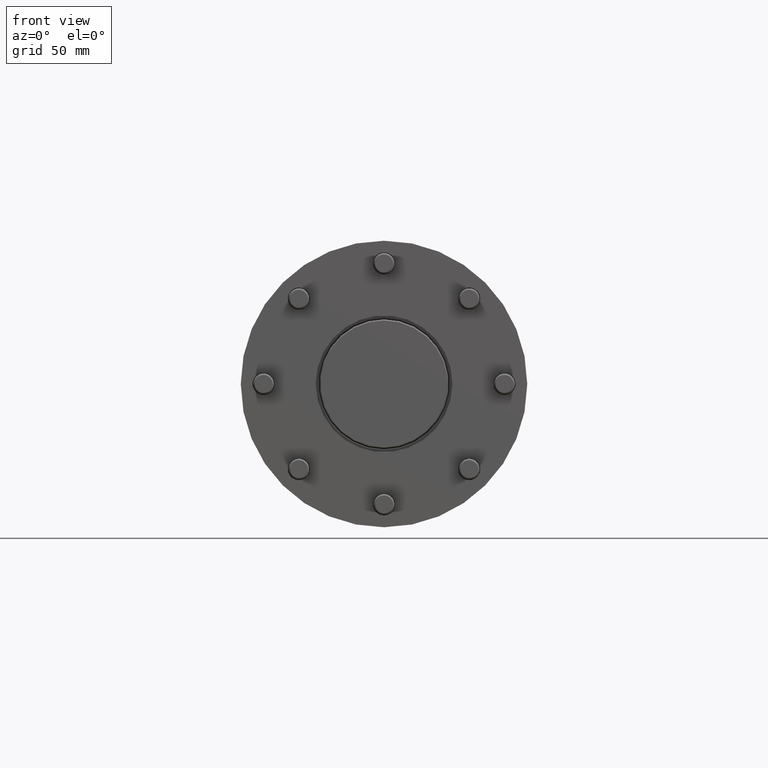
[diagram: clean part render]
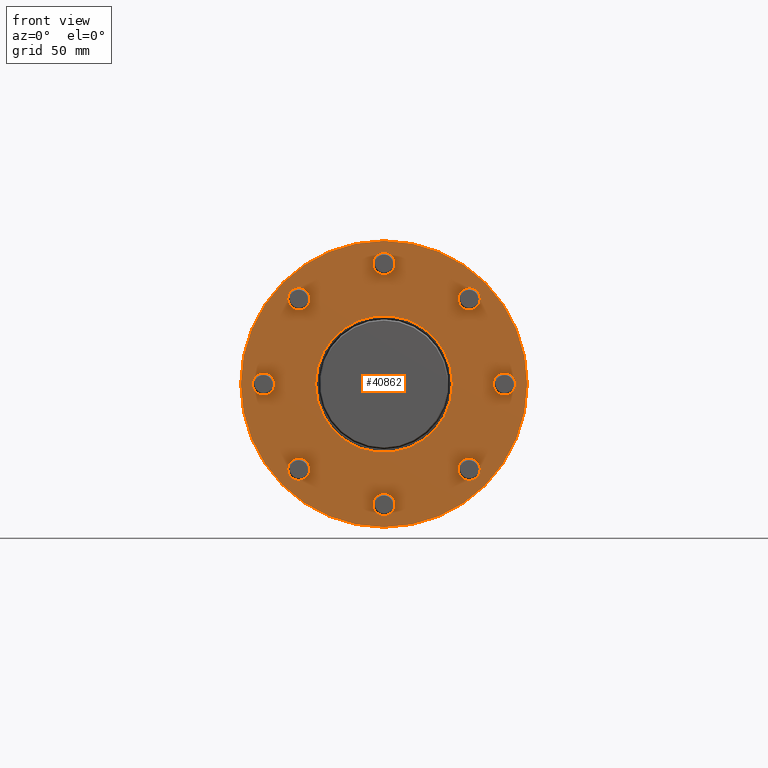
[diagram: same view with one face highlighted and labeled with its STEP entity id]
A machine part, front view. The second image highlights one B-rep face of the part: STEP entity #40862.
In plain terms, the highlighted planar face has unit normal (0, -1, 0).
Its self-contained STEP definition (entity closure, byte-faithful):
#86 = DIRECTION ( 'NONE',  ( 0.0000000000000000000, -1.000000000000000000, 0.0000000000000000000 ) ) ;
#146 = DIRECTION ( 'NONE',  ( 1.000000000000000000, 0.0000000000000000000, 0.0000000000000000000 ) ) ;
#170 = CARTESIAN_POINT ( 'NONE',  ( 0.0000000000000000000, -1.734723475976804900E-015, 92.50000000000000000 ) ) ;
#224 = CARTESIAN_POINT ( 'NONE',  ( 92.50000000000000000, -1.734723475976804900E-015, -3.229620238429899800E-013 ) ) ;
#296 = CARTESIAN_POINT ( 'NONE',  ( 65.40737725975580500, -1.734723475976804900E-015, 65.40737725975560600 ) ) ;
#299 = DIRECTION ( 'NONE',  ( 0.0000000000000000000, -1.000000000000000000, 0.0000000000000000000 ) ) ;
#300 = DIRECTION ( 'NONE',  ( 1.000000000000000000, 0.0000000000000000000, 0.0000000000000000000 ) ) ;
#517 = DIRECTION ( 'NONE',  ( 0.0000000000000000000, -1.000000000000000000, 0.0000000000000000000 ) ) ;
#518 = DIRECTION ( 'NONE',  ( 1.000000000000000000, 0.0000000000000000000, 0.0000000000000000000 ) ) ;
#519 = CARTESIAN_POINT ( 'NONE',  ( 0.0000000000000000000, -1.734723475976804900E-015, 0.0000000000000000000 ) ) ;
#522 = DIRECTION ( 'NONE',  ( 0.0000000000000000000, -1.000000000000000000, 0.0000000000000000000 ) ) ;
#523 = DIRECTION ( 'NONE',  ( 1.000000000000000000, 0.0000000000000000000, 0.0000000000000000000 ) ) ;
#12394 = DIRECTION ( 'NONE',  ( 1.000000000000000000, 0.0000000000000000000, 0.0000000000000000000 ) ) ;
#12395 = DIRECTION ( 'NONE',  ( 0.0000000000000000000, -1.000000000000000000, 0.0000000000000000000 ) ) ;
#12397 = CARTESIAN_POINT ( 'NONE',  ( 65.40737725975530700, -1.734723475976804900E-015, -65.40737725975601800 ) ) ;
#12862 = CARTESIAN_POINT ( 'NONE',  ( 92.50000000000000000, -1.734723475976804900E-015, -3.229620238429899800E-013 ) ) ;
#12863 = DIRECTION ( 'NONE',  ( 0.0000000000000000000, -1.000000000000000000, 0.0000000000000000000 ) ) ;
#12865 = DIRECTION ( 'NONE',  ( 1.000000000000000000, 0.0000000000000000000, 0.0000000000000000000 ) ) ;
#12867 = CARTESIAN_POINT ( 'NONE',  ( 65.40737725975580500, -1.734723475976804900E-015, 65.40737725975560600 ) ) ;
#12870 = DIRECTION ( 'NONE',  ( 1.000000000000000000, 0.0000000000000000000, 0.0000000000000000000 ) ) ;
#12871 = DIRECTION ( 'NONE',  ( 0.0000000000000000000, -1.000000000000000000, 0.0000000000000000000 ) ) ;
#12875 = CARTESIAN_POINT ( 'NONE',  ( 0.0000000000000000000, -1.734723475976804900E-015, 92.50000000000000000 ) ) ;
#12877 = CARTESIAN_POINT ( 'NONE',  ( 0.0000000000000000000, -1.734723475976804900E-015, 0.0000000000000000000 ) ) ;
#12878 = DIRECTION ( 'NONE',  ( 0.0000000000000000000, -1.000000000000000000, 0.0000000000000000000 ) ) ;
#12880 = DIRECTION ( 'NONE',  ( 1.000000000000000000, 0.0000000000000000000, 0.0000000000000000000 ) ) ;
#12882 = CARTESIAN_POINT ( 'NONE',  ( 0.0000000000000000000, -1.734723475976804900E-015, 0.0000000000000000000 ) ) ;
#12885 = DIRECTION ( 'NONE',  ( 0.0000000000000000000, -1.000000000000000000, 0.0000000000000000000 ) ) ;
#12887 = DIRECTION ( 'NONE',  ( 1.000000000000000000, 0.0000000000000000000, 0.0000000000000000000 ) ) ;
#12893 = DIRECTION ( 'NONE',  ( 0.0000000000000000000, -1.000000000000000000, 0.0000000000000000000 ) ) ;
#12894 = DIRECTION ( 'NONE',  ( 1.000000000000000000, 0.0000000000000000000, 0.0000000000000000000 ) ) ;
#12900 = CARTESIAN_POINT ( 'NONE',  ( -65.40737725975489500, -1.734723475976804900E-015, 65.40737725975651500 ) ) ;
#12909 = CARTESIAN_POINT ( 'NONE',  ( -65.40737725975630200, -1.734723475976804900E-015, -65.40737725975510800 ) ) ;
#12913 = CARTESIAN_POINT ( 'NONE',  ( -92.50000000000000000, -1.734723475976804900E-015, 9.688860715289700900E-013 ) ) ;
#12914 = DIRECTION ( 'NONE',  ( 1.000000000000000000, 0.0000000000000000000, 0.0000000000000000000 ) ) ;
#12915 = DIRECTION ( 'NONE',  ( 0.0000000000000000000, -1.000000000000000000, 0.0000000000000000000 ) ) ;
#12916 = CARTESIAN_POINT ( 'NONE',  ( -6.459240476859800600E-013, -1.734723475976804900E-015, -92.50000000000000000 ) ) ;
#12917 = DIRECTION ( 'NONE',  ( 1.000000000000000000, 0.0000000000000000000, 0.0000000000000000000 ) ) ;
#12918 = DIRECTION ( 'NONE',  ( 0.0000000000000000000, -1.000000000000000000, 0.0000000000000000000 ) ) ;
#12920 = DIRECTION ( 'NONE',  ( 1.000000000000000000, 0.0000000000000000000, 0.0000000000000000000 ) ) ;
#12921 = DIRECTION ( 'NONE',  ( 0.0000000000000000000, -1.000000000000000000, 0.0000000000000000000 ) ) ;
#12922 = DIRECTION ( 'NONE',  ( 1.000000000000000000, 0.0000000000000000000, 0.0000000000000000000 ) ) ;
#12923 = DIRECTION ( 'NONE',  ( 0.0000000000000000000, -1.000000000000000000, 0.0000000000000000000 ) ) ;
#15802 = ORIENTED_EDGE ( 'NONE', *, *, #18904, .F. ) ;
#15803 = ORIENTED_EDGE ( 'NONE', *, *, #18897, .F. ) ;
#15804 = ORIENTED_EDGE ( 'NONE', *, *, #19399, .F. ) ;
#15805 = ORIENTED_EDGE ( 'NONE', *, *, #18900, .F. ) ;
#15806 = ORIENTED_EDGE ( 'NONE', *, *, #18892, .F. ) ;
#15807 = ORIENTED_EDGE ( 'NONE', *, *, #19401, .F. ) ;
#15808 = ORIENTED_EDGE ( 'NONE', *, *, #19546, .F. ) ;
#15809 = ORIENTED_EDGE ( 'NONE', *, *, #18392, .F. ) ;
#15811 = ORIENTED_EDGE ( 'NONE', *, *, #18308, .F. ) ;
#15812 = ORIENTED_EDGE ( 'NONE', *, *, #18278, .F. ) ;
#15813 = ORIENTED_EDGE ( 'NONE', *, *, #18396, .T. ) ;
#15814 = ORIENTED_EDGE ( 'NONE', *, *, #19391, .T. ) ;
#15815 = ORIENTED_EDGE ( 'NONE', *, *, #19388, .F. ) ;
#15816 = ORIENTED_EDGE ( 'NONE', *, *, #18940, .F. ) ;
#15842 = ORIENTED_EDGE ( 'NONE', *, *, #19385, .F. ) ;
#15845 = ORIENTED_EDGE ( 'NONE', *, *, #19379, .F. ) ;
#15846 = ORIENTED_EDGE ( 'NONE', *, *, #19382, .F. ) ;
#15848 = ORIENTED_EDGE ( 'NONE', *, *, #19714, .F. ) ;
#15850 = ORIENTED_EDGE ( 'NONE', *, *, #19400, .F. ) ;
#15852 = ORIENTED_EDGE ( 'NONE', *, *, #19398, .F. ) ;
#16991 = CIRCLE ( 'NONE', #61857, 8.500000000000007100 ) ;
#17000 = CIRCLE ( 'NONE', #61858, 8.499999999999992900 ) ;
#17010 = CIRCLE ( 'NONE', #61856, 8.500000000000000000 ) ;
#17016 = CIRCLE ( 'NONE', #61859, 52.50000000000000000 ) ;
#17026 = CIRCLE ( 'NONE', #61860, 110.0000000000000000 ) ;
#17046 = CIRCLE ( 'NONE', #61868, 8.500000000000000000 ) ;
#17047 = CIRCLE ( 'NONE', #61869, 8.500000000000000000 ) ;
#17049 = CIRCLE ( 'NONE', #61870, 8.500000000000007100 ) ;
#17053 = CIRCLE ( 'NONE', #61871, 8.500000000000000000 ) ;
#17339 = CIRCLE ( 'NONE', #61890, 8.499999999999992900 ) ;
#17602 = CIRCLE ( 'NONE', #61921, 8.499999999999992900 ) ;
#18278 = EDGE_CURVE ( 'NONE', #51222, #51102, #69260, .T. ) ;
#18308 = EDGE_CURVE ( 'NONE', #51017, #50901, #69292, .T. ) ;
#18392 = EDGE_CURVE ( 'NONE', #51209, #51074, #69390, .T. ) ;
#18396 = EDGE_CURVE ( 'NONE', #51358, #50955, #69395, .T. ) ;
#18892 = EDGE_CURVE ( 'NONE', #51167, #50909, #70229, .T. ) ;
#18897 = EDGE_CURVE ( 'NONE', #50859, #51088, #70244, .T. ) ;
#18900 = EDGE_CURVE ( 'NONE', #50894, #50704, #70253, .T. ) ;
#18904 = EDGE_CURVE ( 'NONE', #50046, #51057, #70265, .T. ) ;
#18940 = EDGE_CURVE ( 'NONE', #51206, #50970, #70374, .T. ) ;
#19379 = EDGE_CURVE ( 'NONE', #51074, #51209, #16991, .T. ) ;
#19382 = EDGE_CURVE ( 'NONE', #50901, #51017, #17000, .T. ) ;
#19385 = EDGE_CURVE ( 'NONE', #51102, #51222, #17010, .T. ) ;
#19388 = EDGE_CURVE ( 'NONE', #50970, #51206, #17016, .T. ) ;
#19391 = EDGE_CURVE ( 'NONE', #50955, #51358, #17026, .T. ) ;
#19398 = EDGE_CURVE ( 'NONE', #51057, #50046, #17046, .T. ) ;
#19399 = EDGE_CURVE ( 'NONE', #51088, #50859, #17047, .T. ) ;
#19400 = EDGE_CURVE ( 'NONE', #50704, #50894, #17049, .T. ) ;
#19401 = EDGE_CURVE ( 'NONE', #50909, #51167, #17053, .T. ) ;
#19546 = EDGE_CURVE ( 'NONE', #50706, #50988, #17339, .T. ) ;
#19714 = EDGE_CURVE ( 'NONE', #50988, #50706, #17602, .T. ) ;
#29065 = AXIS2_PLACEMENT_3D ( 'NONE', #296, #299, #300 ) ;
#29100 = AXIS2_PLACEMENT_3D ( 'NONE', #170, #86, #146 ) ;
#34123 = CARTESIAN_POINT ( 'NONE',  ( 65.40737725975530700, -1.734723475976804900E-015, -65.40737725975601800 ) ) ;
#34158 = DIRECTION ( 'NONE',  ( 0.0000000000000000000, -1.000000000000000000, 0.0000000000000000000 ) ) ;
#34159 = DIRECTION ( 'NONE',  ( 1.000000000000000000, 0.0000000000000000000, 0.0000000000000000000 ) ) ;
#34439 = CARTESIAN_POINT ( 'NONE',  ( 0.0000000000000000000, -1.734723475976804900E-015, 0.0000000000000000000 ) ) ;
#34463 = DIRECTION ( 'NONE',  ( 0.0000000000000000000, -1.000000000000000000, 0.0000000000000000000 ) ) ;
#34464 = DIRECTION ( 'NONE',  ( 1.000000000000000000, 0.0000000000000000000, 0.0000000000000000000 ) ) ;
#34567 = CARTESIAN_POINT ( 'NONE',  ( -65.40737725975489500, -1.734723475976804900E-015, 65.40737725975651500 ) ) ;
#34624 = DIRECTION ( 'NONE',  ( 0.0000000000000000000, -1.000000000000000000, 0.0000000000000000000 ) ) ;
#34628 = DIRECTION ( 'NONE',  ( 1.000000000000000000, 0.0000000000000000000, 0.0000000000000000000 ) ) ;
#34684 = CARTESIAN_POINT ( 'NONE',  ( -65.40737725975630200, -1.734723475976804900E-015, -65.40737725975510800 ) ) ;
#34685 = DIRECTION ( 'NONE',  ( 0.0000000000000000000, -1.000000000000000000, 0.0000000000000000000 ) ) ;
#34686 = DIRECTION ( 'NONE',  ( 1.000000000000000000, 0.0000000000000000000, 0.0000000000000000000 ) ) ;
#34709 = CARTESIAN_POINT ( 'NONE',  ( -92.50000000000000000, -1.734723475976804900E-015, 9.688860715289700900E-013 ) ) ;
#34712 = DIRECTION ( 'NONE',  ( 0.0000000000000000000, -1.000000000000000000, 0.0000000000000000000 ) ) ;
#34714 = DIRECTION ( 'NONE',  ( 1.000000000000000000, 0.0000000000000000000, 0.0000000000000000000 ) ) ;
#35004 = DIRECTION ( 'NONE',  ( 1.000000000000000000, 0.0000000000000000000, 0.0000000000000000000 ) ) ;
#35006 = DIRECTION ( 'NONE',  ( 0.0000000000000000000, -1.000000000000000000, 0.0000000000000000000 ) ) ;
#35015 = CARTESIAN_POINT ( 'NONE',  ( -6.459240476859800600E-013, -1.734723475976804900E-015, -92.50000000000000000 ) ) ;
#36287 = FACE_BOUND ( 'NONE', #63127, .T. ) ;
#36288 = FACE_BOUND ( 'NONE', #40132, .T. ) ;
#36290 = FACE_BOUND ( 'NONE', #63123, .T. ) ;
#36291 = FACE_BOUND ( 'NONE', #63144, .T. ) ;
#36296 = FACE_BOUND ( 'NONE', #63126, .T. ) ;
#36297 = FACE_BOUND ( 'NONE', #39617, .T. ) ;
#36298 = FACE_BOUND ( 'NONE', #63124, .T. ) ;
#36299 = FACE_BOUND ( 'NONE', #39609, .T. ) ;
#36300 = FACE_BOUND ( 'NONE', #63125, .T. ) ;
#36301 = FACE_OUTER_BOUND ( 'NONE', #39706, .T. ) ;
#39609 = EDGE_LOOP ( 'NONE', ( #15842, #15812 ) ) ;
#39617 = EDGE_LOOP ( 'NONE', ( #15846, #15811 ) ) ;
#39706 = EDGE_LOOP ( 'NONE', ( #15813, #15814 ) ) ;
#40132 = EDGE_LOOP ( 'NONE', ( #15815, #15816 ) ) ;
#40862 = ADVANCED_FACE ( 'NONE', ( #36291, #36290, #36298, #36300, #36287, #36296, #36297, #36299, #36301, #36288 ), #55174, .T. ) ;
#50046 = VERTEX_POINT ( 'NONE', #71967 ) ;
#50704 = VERTEX_POINT ( 'NONE', #73252 ) ;
#50706 = VERTEX_POINT ( 'NONE', #73256 ) ;
#50859 = VERTEX_POINT ( 'NONE', #73274 ) ;
#50894 = VERTEX_POINT ( 'NONE', #73340 ) ;
#50901 = VERTEX_POINT ( 'NONE', #73351 ) ;
#50909 = VERTEX_POINT ( 'NONE', #73367 ) ;
#50955 = VERTEX_POINT ( 'NONE', #73456 ) ;
#50970 = VERTEX_POINT ( 'NONE', #73483 ) ;
#50988 = VERTEX_POINT ( 'NONE', #73519 ) ;
#51017 = VERTEX_POINT ( 'NONE', #73533 ) ;
#51057 = VERTEX_POINT ( 'NONE', #73607 ) ;
#51074 = VERTEX_POINT ( 'NONE', #73640 ) ;
#51088 = VERTEX_POINT ( 'NONE', #73667 ) ;
#51102 = VERTEX_POINT ( 'NONE', #73695 ) ;
#51167 = VERTEX_POINT ( 'NONE', #73820 ) ;
#51206 = VERTEX_POINT ( 'NONE', #73893 ) ;
#51209 = VERTEX_POINT ( 'NONE', #73899 ) ;
#51222 = VERTEX_POINT ( 'NONE', #73925 ) ;
#51358 = VERTEX_POINT ( 'NONE', #74010 ) ;
#53688 = AXIS2_PLACEMENT_3D ( 'NONE', #519, #522, #523 ) ;
#53738 = AXIS2_PLACEMENT_3D ( 'NONE', #224, #517, #518 ) ;
#55174 = PLANE ( 'NONE',  #70942 ) ;
#55181 = CARTESIAN_POINT ( 'NONE',  ( 0.0000000000000000000, -1.734723475976804900E-015, 0.0000000000000000000 ) ) ;
#55193 = DIRECTION ( 'NONE',  ( 0.0000000000000000000, -1.000000000000000000, 0.0000000000000000000 ) ) ;
#55194 = DIRECTION ( 'NONE',  ( 1.000000000000000000, 0.0000000000000000000, 0.0000000000000000000 ) ) ;
#61715 = AXIS2_PLACEMENT_3D ( 'NONE', #35015, #35006, #35004 ) ;
#61719 = AXIS2_PLACEMENT_3D ( 'NONE', #34684, #34685, #34686 ) ;
#61721 = AXIS2_PLACEMENT_3D ( 'NONE', #34709, #34712, #34714 ) ;
#61724 = AXIS2_PLACEMENT_3D ( 'NONE', #34567, #34624, #34628 ) ;
#61748 = AXIS2_PLACEMENT_3D ( 'NONE', #34439, #34463, #34464 ) ;
#61856 = AXIS2_PLACEMENT_3D ( 'NONE', #12875, #12878, #12880 ) ;
#61857 = AXIS2_PLACEMENT_3D ( 'NONE', #12862, #12863, #12865 ) ;
#61858 = AXIS2_PLACEMENT_3D ( 'NONE', #12867, #12871, #12870 ) ;
#61859 = AXIS2_PLACEMENT_3D ( 'NONE', #12882, #12885, #12887 ) ;
#61860 = AXIS2_PLACEMENT_3D ( 'NONE', #12877, #12893, #12894 ) ;
#61868 = AXIS2_PLACEMENT_3D ( 'NONE', #12900, #12915, #12914 ) ;
#61869 = AXIS2_PLACEMENT_3D ( 'NONE', #12909, #12918, #12917 ) ;
#61870 = AXIS2_PLACEMENT_3D ( 'NONE', #12913, #12921, #12920 ) ;
#61871 = AXIS2_PLACEMENT_3D ( 'NONE', #12916, #12923, #12922 ) ;
#61890 = AXIS2_PLACEMENT_3D ( 'NONE', #12397, #12395, #12394 ) ;
#61921 = AXIS2_PLACEMENT_3D ( 'NONE', #34123, #34158, #34159 ) ;
#63123 = EDGE_LOOP ( 'NONE', ( #15805, #15850 ) ) ;
#63124 = EDGE_LOOP ( 'NONE', ( #15803, #15804 ) ) ;
#63125 = EDGE_LOOP ( 'NONE', ( #15806, #15807 ) ) ;
#63126 = EDGE_LOOP ( 'NONE', ( #15845, #15809 ) ) ;
#63127 = EDGE_LOOP ( 'NONE', ( #15848, #15808 ) ) ;
#63144 = EDGE_LOOP ( 'NONE', ( #15802, #15852 ) ) ;
#69260 = CIRCLE ( 'NONE', #29100, 8.500000000000000000 ) ;
#69292 = CIRCLE ( 'NONE', #29065, 8.499999999999992900 ) ;
#69390 = CIRCLE ( 'NONE', #53738, 8.500000000000007100 ) ;
#69395 = CIRCLE ( 'NONE', #53688, 110.0000000000000000 ) ;
#70229 = CIRCLE ( 'NONE', #61715, 8.500000000000000000 ) ;
#70244 = CIRCLE ( 'NONE', #61719, 8.500000000000000000 ) ;
#70253 = CIRCLE ( 'NONE', #61721, 8.500000000000007100 ) ;
#70265 = CIRCLE ( 'NONE', #61724, 8.500000000000000000 ) ;
#70374 = CIRCLE ( 'NONE', #61748, 52.50000000000000000 ) ;
#70942 = AXIS2_PLACEMENT_3D ( 'NONE', #55181, #55193, #55194 ) ;
#71967 = CARTESIAN_POINT ( 'NONE',  ( -73.90737725975490900, -1.734723475976804900E-015, 65.40737725975651500 ) ) ;
#73252 = CARTESIAN_POINT ( 'NONE',  ( -83.99999999999998600, -1.734723475976804900E-015, 9.699270213082454600E-013 ) ) ;
#73256 = CARTESIAN_POINT ( 'NONE',  ( 73.90737725975529300, -1.734723475976804900E-015, -65.40737725975601800 ) ) ;
#73274 = CARTESIAN_POINT ( 'NONE',  ( -73.90737725975630200, -1.734723475976804900E-015, -65.40737725975510800 ) ) ;
#73340 = CARTESIAN_POINT ( 'NONE',  ( -101.0000000000000000, -1.734723475976804900E-015, 9.688860715289700900E-013 ) ) ;
#73351 = CARTESIAN_POINT ( 'NONE',  ( 56.90737725975580500, -1.734723475976804900E-015, 65.40737725975560600 ) ) ;
#73367 = CARTESIAN_POINT ( 'NONE',  ( 8.499999999999355200, -1.734723475976804900E-015, -92.50000000000000000 ) ) ;
#73456 = CARTESIAN_POINT ( 'NONE',  ( 110.0000000000000000, -1.734723475976804900E-015, 1.347111479062088500E-014 ) ) ;
#73483 = CARTESIAN_POINT ( 'NONE',  ( -52.50000000000000000, -1.734723475976804900E-015, 0.0000000000000000000 ) ) ;
#73519 = CARTESIAN_POINT ( 'NONE',  ( 56.90737725975530000, -1.734723475976804900E-015, -65.40737725975601800 ) ) ;
#73533 = CARTESIAN_POINT ( 'NONE',  ( 73.90737725975579100, -1.734723475976804900E-015, 65.40737725975560600 ) ) ;
#73607 = CARTESIAN_POINT ( 'NONE',  ( -56.90737725975490200, -1.734723475976804900E-015, 65.40737725975651500 ) ) ;
#73640 = CARTESIAN_POINT ( 'NONE',  ( 83.99999999999998600, -1.734723475976804900E-015, -3.229620238429899800E-013 ) ) ;
#73667 = CARTESIAN_POINT ( 'NONE',  ( -56.90737725975630200, -1.734723475976804900E-015, -65.40737725975510800 ) ) ;
#73695 = CARTESIAN_POINT ( 'NONE',  ( -8.500000000000000000, -1.734723475976804900E-015, 92.50000000000000000 ) ) ;
#73820 = CARTESIAN_POINT ( 'NONE',  ( -8.500000000000646600, -1.734723475976804900E-015, -92.50000000000000000 ) ) ;
#73893 = CARTESIAN_POINT ( 'NONE',  ( 52.50000000000000000, -1.734723475976804900E-015, 6.429395695523604000E-015 ) ) ;
#73899 = CARTESIAN_POINT ( 'NONE',  ( 101.0000000000000000, -1.734723475976804900E-015, -3.219210740637147700E-013 ) ) ;
#73925 = CARTESIAN_POINT ( 'NONE',  ( 8.500000000000000000, -1.734723475976804900E-015, 92.50000000000000000 ) ) ;
#74010 = CARTESIAN_POINT ( 'NONE',  ( -110.0000000000000000, -1.734723475976804900E-015, 0.0000000000000000000 ) ) ;